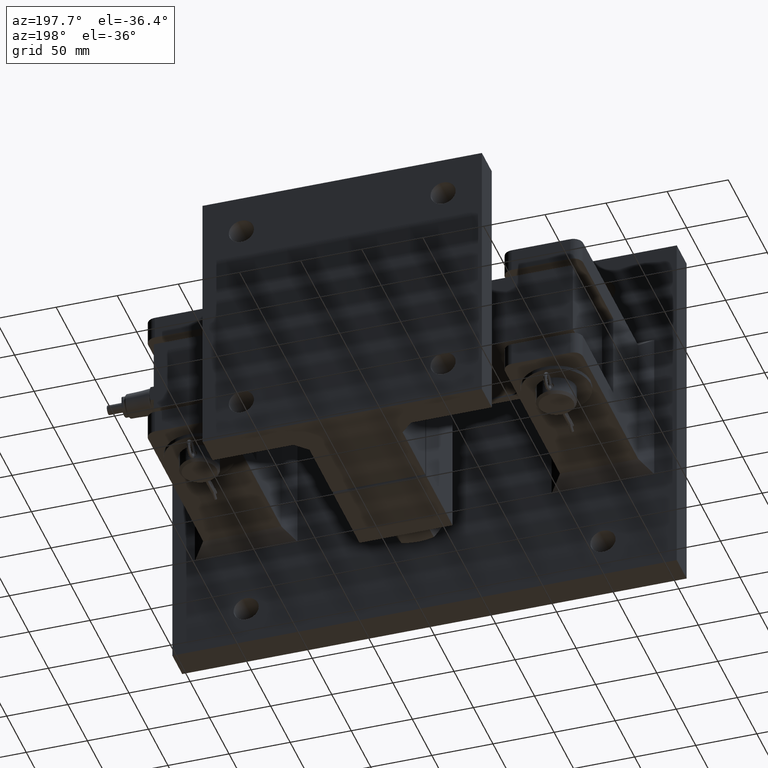
[diagram: clean part render]
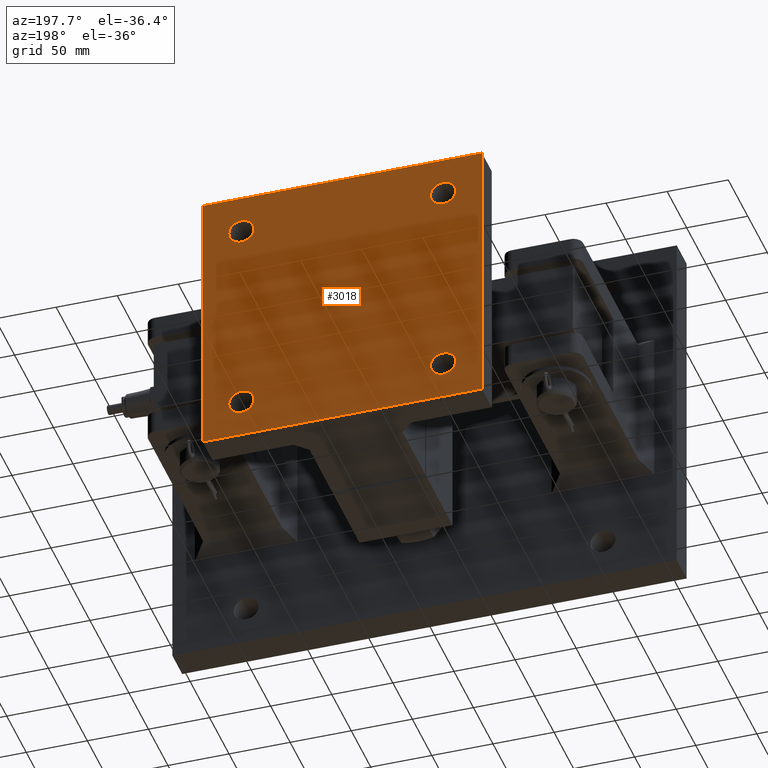
[diagram: same view with one face highlighted and labeled with its STEP entity id]
A machine part, auxiliary view. The second image highlights one B-rep face of the part: STEP entity #3018.
In plain terms, the highlighted planar face has unit normal (0, -1, 0).
Its self-contained STEP definition (entity closure, byte-faithful):
#44 = VECTOR ( 'NONE', #7667, 1000.000000000000000 ) ;
#53 = VERTEX_POINT ( 'NONE', #2082 ) ;
#194 = ORIENTED_EDGE ( 'NONE', *, *, #4533, .T. ) ;
#331 = CARTESIAN_POINT ( 'NONE',  ( 114.3000000000000114, 236.5000000000000284, -114.3000000000000398 ) ) ;
#378 = CARTESIAN_POINT ( 'NONE',  ( 114.3000000000000114, 236.5000000000000284, -114.3000000000000398 ) ) ;
#490 = DIRECTION ( 'NONE',  ( 1.821231995776175972E-16, -0.000000000000000000, -1.000000000000000000 ) ) ;
#652 = EDGE_CURVE ( 'NONE', #8653, #7490, #4515, .T. ) ;
#837 = LINE ( 'NONE', #948, #44 ) ;
#948 = CARTESIAN_POINT ( 'NONE',  ( 114.2999999999999829, 236.5000000000000284, 114.2999999999999687 ) ) ;
#971 = CARTESIAN_POINT ( 'NONE',  ( -72.25000000000005684, 236.4999999999999716, 82.54999999999995453 ) ) ;
#1027 = ORIENTED_EDGE ( 'NONE', *, *, #3782, .F. ) ;
#1126 = DIRECTION ( 'NONE',  ( 1.000000000000000000, 0.000000000000000000, 0.000000000000000000 ) ) ;
#1224 = EDGE_CURVE ( 'NONE', #7490, #8653, #6856, .T. ) ;
#1252 = EDGE_CURVE ( 'NONE', #5318, #10965, #837, .T. ) ;
#1638 = EDGE_CURVE ( 'NONE', #5335, #9349, #10830, .T. ) ;
#1660 = VECTOR ( 'NONE', #490, 1000.000000000000000 ) ;
#1714 = DIRECTION ( 'NONE',  ( 1.000000000000000000, 0.000000000000000000, 0.000000000000000000 ) ) ;
#1834 = CARTESIAN_POINT ( 'NONE',  ( 114.2999999999999829, 236.5000000000000284, 114.2999999999999687 ) ) ;
#1851 = AXIS2_PLACEMENT_3D ( 'NONE', #9408, #8615, #4188 ) ;
#1864 = CIRCLE ( 'NONE', #5621, 10.30000000000000426 ) ;
#1886 = DIRECTION ( 'NONE',  ( 1.836970198721029934E-16, -1.000000000000000000, 0.000000000000000000 ) ) ;
#1890 = ORIENTED_EDGE ( 'NONE', *, *, #1638, .T. ) ;
#2056 = CARTESIAN_POINT ( 'NONE',  ( -114.2999999999999545, 236.4999999999999716, -114.3000000000000256 ) ) ;
#2082 = CARTESIAN_POINT ( 'NONE',  ( 114.3000000000000114, 236.5000000000000284, -114.3000000000000398 ) ) ;
#2167 = CIRCLE ( 'NONE', #9519, 10.30000000000000426 ) ;
#2171 = EDGE_CURVE ( 'NONE', #9349, #5335, #3475, .T. ) ;
#2336 = DIRECTION ( 'NONE',  ( 1.000000000000000000, 0.000000000000000000, 0.000000000000000000 ) ) ;
#2358 = AXIS2_PLACEMENT_3D ( 'NONE', #10532, #1886, #1714 ) ;
#2622 = EDGE_CURVE ( 'NONE', #6841, #9226, #2167, .T. ) ;
#2636 = AXIS2_PLACEMENT_3D ( 'NONE', #10870, #8217, #7253 ) ;
#2727 = ORIENTED_EDGE ( 'NONE', *, *, #1224, .T. ) ;
#2813 = EDGE_CURVE ( 'NONE', #6563, #10974, #7001, .T. ) ;
#2816 = CIRCLE ( 'NONE', #2636, 10.30000000000000426 ) ;
#3018 = ADVANCED_FACE ( 'NONE', ( #8167, #3897, #4900, #8436, #7581 ), #9966, .F. ) ;
#3352 = ORIENTED_EDGE ( 'NONE', *, *, #5708, .T. ) ;
#3396 = DIRECTION ( 'NONE',  ( 1.000000000000000000, 0.000000000000000000, 0.000000000000000000 ) ) ;
#3399 = DIRECTION ( 'NONE',  ( 1.000000000000000000, 0.000000000000000000, 0.000000000000000000 ) ) ;
#3475 = CIRCLE ( 'NONE', #9757, 10.30000000000000426 ) ;
#3755 = DIRECTION ( 'NONE',  ( -1.214154663850783653E-16, 0.000000000000000000, 1.000000000000000000 ) ) ;
#3782 = EDGE_CURVE ( 'NONE', #53, #5318, #8027, .T. ) ;
#3871 = CARTESIAN_POINT ( 'NONE',  ( -82.55000000000005400, 236.4999999999999716, 82.54999999999995453 ) ) ;
#3897 = FACE_BOUND ( 'NONE', #5346, .T. ) ;
#4182 = CARTESIAN_POINT ( 'NONE',  ( -82.55000000000003979, 236.4999999999999716, -82.54999999999996874 ) ) ;
#4188 = DIRECTION ( 'NONE',  ( 1.000000000000000000, 0.000000000000000000, 0.000000000000000000 ) ) ;
#4293 = CARTESIAN_POINT ( 'NONE',  ( -114.2999999999999972, 236.4999999999999716, 114.2999999999999545 ) ) ;
#4331 = AXIS2_PLACEMENT_3D ( 'NONE', #8272, #5901, #10972 ) ;
#4400 = EDGE_CURVE ( 'NONE', #10965, #7343, #9869, .T. ) ;
#4461 = CARTESIAN_POINT ( 'NONE',  ( -92.85000000000005116, 236.4999999999999716, 82.54999999999995453 ) ) ;
#4515 = CIRCLE ( 'NONE', #4693, 10.30000000000000426 ) ;
#4533 = EDGE_CURVE ( 'NONE', #9226, #6841, #1864, .T. ) ;
#4561 = CARTESIAN_POINT ( 'NONE',  ( -92.85000000000003695, 236.4999999999999716, -82.54999999999996874 ) ) ;
#4693 = AXIS2_PLACEMENT_3D ( 'NONE', #5814, #10838, #2336 ) ;
#4781 = DIRECTION ( 'NONE',  ( 1.836970198721029934E-16, -1.000000000000000000, 0.000000000000000000 ) ) ;
#4891 = AXIS2_PLACEMENT_3D ( 'NONE', #3871, #8028, #1126 ) ;
#4900 = FACE_BOUND ( 'NONE', #10142, .T. ) ;
#4913 = CARTESIAN_POINT ( 'NONE',  ( 72.24999999999992895, 236.5000000000000284, -82.54999999999995453 ) ) ;
#5081 = DIRECTION ( 'NONE',  ( 1.836970198721029934E-16, -1.000000000000000000, 0.000000000000000000 ) ) ;
#5318 = VERTEX_POINT ( 'NONE', #1834 ) ;
#5335 = VERTEX_POINT ( 'NONE', #6369 ) ;
#5346 = EDGE_LOOP ( 'NONE', ( #7416, #3352 ) ) ;
#5416 = VECTOR ( 'NONE', #3755, 1000.000000000000000 ) ;
#5621 = AXIS2_PLACEMENT_3D ( 'NONE', #7596, #11099, #3399 ) ;
#5708 = EDGE_CURVE ( 'NONE', #10974, #6563, #2816, .T. ) ;
#5814 = CARTESIAN_POINT ( 'NONE',  ( -82.55000000000005400, 236.4999999999999716, 82.54999999999995453 ) ) ;
#5901 = DIRECTION ( 'NONE',  ( 2.428309327701567798E-16, -1.000000000000000000, 4.422514643251830308E-32 ) ) ;
#6369 = CARTESIAN_POINT ( 'NONE',  ( 92.84999999999996589, 236.5000000000000284, 82.55000000000002558 ) ) ;
#6563 = VERTEX_POINT ( 'NONE', #4913 ) ;
#6697 = ORIENTED_EDGE ( 'NONE', *, *, #2171, .T. ) ;
#6739 = ORIENTED_EDGE ( 'NONE', *, *, #2622, .T. ) ;
#6841 = VERTEX_POINT ( 'NONE', #4561 ) ;
#6856 = CIRCLE ( 'NONE', #4891, 10.30000000000000426 ) ;
#6946 = EDGE_LOOP ( 'NONE', ( #7073, #2727 ) ) ;
#6979 = CARTESIAN_POINT ( 'NONE',  ( 72.24999999999995737, 236.5000000000000284, 82.55000000000002558 ) ) ;
#7001 = CIRCLE ( 'NONE', #2358, 10.30000000000000426 ) ;
#7024 = ORIENTED_EDGE ( 'NONE', *, *, #8031, .F. ) ;
#7073 = ORIENTED_EDGE ( 'NONE', *, *, #652, .T. ) ;
#7253 = DIRECTION ( 'NONE',  ( 1.000000000000000000, 0.000000000000000000, 0.000000000000000000 ) ) ;
#7343 = VERTEX_POINT ( 'NONE', #2056 ) ;
#7407 = CARTESIAN_POINT ( 'NONE',  ( 82.54999999999995453, 236.5000000000000284, 82.55000000000002558 ) ) ;
#7416 = ORIENTED_EDGE ( 'NONE', *, *, #2813, .T. ) ;
#7490 = VERTEX_POINT ( 'NONE', #971 ) ;
#7581 = FACE_BOUND ( 'NONE', #8607, .T. ) ;
#7596 = CARTESIAN_POINT ( 'NONE',  ( -82.55000000000003979, 236.4999999999999716, -82.54999999999996874 ) ) ;
#7667 = DIRECTION ( 'NONE',  ( -1.000000000000000000, -2.428309327701567798E-16, -6.070773319253919496E-17 ) ) ;
#8027 = LINE ( 'NONE', #331, #5416 ) ;
#8028 = DIRECTION ( 'NONE',  ( 1.836970198721029934E-16, -1.000000000000000000, 0.000000000000000000 ) ) ;
#8031 = EDGE_CURVE ( 'NONE', #7343, #53, #8740, .T. ) ;
#8167 = FACE_OUTER_BOUND ( 'NONE', #10318, .T. ) ;
#8180 = CARTESIAN_POINT ( 'NONE',  ( -114.2999999999999545, 236.4999999999999716, -114.3000000000000256 ) ) ;
#8187 = VECTOR ( 'NONE', #10497, 1000.000000000000000 ) ;
#8217 = DIRECTION ( 'NONE',  ( 1.836970198721029934E-16, -1.000000000000000000, 0.000000000000000000 ) ) ;
#8257 = DIRECTION ( 'NONE',  ( 1.000000000000000000, 0.000000000000000000, 0.000000000000000000 ) ) ;
#8272 = CARTESIAN_POINT ( 'NONE',  ( -5.742951560014207071E-14, 236.5000000000000000, -1.045924713129057850E-29 ) ) ;
#8436 = FACE_BOUND ( 'NONE', #6946, .T. ) ;
#8607 = EDGE_LOOP ( 'NONE', ( #6739, #194 ) ) ;
#8615 = DIRECTION ( 'NONE',  ( 1.836970198721029934E-16, -1.000000000000000000, 0.000000000000000000 ) ) ;
#8653 = VERTEX_POINT ( 'NONE', #4461 ) ;
#8740 = LINE ( 'NONE', #378, #8187 ) ;
#9226 = VERTEX_POINT ( 'NONE', #11041 ) ;
#9232 = ORIENTED_EDGE ( 'NONE', *, *, #1252, .F. ) ;
#9290 = CARTESIAN_POINT ( 'NONE',  ( 92.84999999999993747, 236.5000000000000284, -82.54999999999995453 ) ) ;
#9349 = VERTEX_POINT ( 'NONE', #6979 ) ;
#9408 = CARTESIAN_POINT ( 'NONE',  ( 82.54999999999995453, 236.5000000000000284, 82.55000000000002558 ) ) ;
#9519 = AXIS2_PLACEMENT_3D ( 'NONE', #4182, #5081, #3396 ) ;
#9757 = AXIS2_PLACEMENT_3D ( 'NONE', #7407, #4781, #8257 ) ;
#9869 = LINE ( 'NONE', #8180, #1660 ) ;
#9966 = PLANE ( 'NONE',  #4331 ) ;
#10142 = EDGE_LOOP ( 'NONE', ( #6697, #1890 ) ) ;
#10318 = EDGE_LOOP ( 'NONE', ( #10387, #9232, #1027, #7024 ) ) ;
#10387 = ORIENTED_EDGE ( 'NONE', *, *, #4400, .F. ) ;
#10497 = DIRECTION ( 'NONE',  ( 1.000000000000000000, 2.428309327701567798E-16, -6.070773319253919496E-17 ) ) ;
#10532 = CARTESIAN_POINT ( 'NONE',  ( 82.54999999999992610, 236.5000000000000284, -82.54999999999995453 ) ) ;
#10830 = CIRCLE ( 'NONE', #1851, 10.30000000000000426 ) ;
#10838 = DIRECTION ( 'NONE',  ( 1.836970198721029934E-16, -1.000000000000000000, 0.000000000000000000 ) ) ;
#10870 = CARTESIAN_POINT ( 'NONE',  ( 82.54999999999992610, 236.5000000000000284, -82.54999999999995453 ) ) ;
#10965 = VERTEX_POINT ( 'NONE', #4293 ) ;
#10972 = DIRECTION ( 'NONE',  ( 1.000000000000000000, 2.428309327701567798E-16, 0.000000000000000000 ) ) ;
#10974 = VERTEX_POINT ( 'NONE', #9290 ) ;
#11041 = CARTESIAN_POINT ( 'NONE',  ( -72.25000000000004263, 236.4999999999999716, -82.54999999999996874 ) ) ;
#11099 = DIRECTION ( 'NONE',  ( 1.836970198721029934E-16, -1.000000000000000000, 0.000000000000000000 ) ) ;